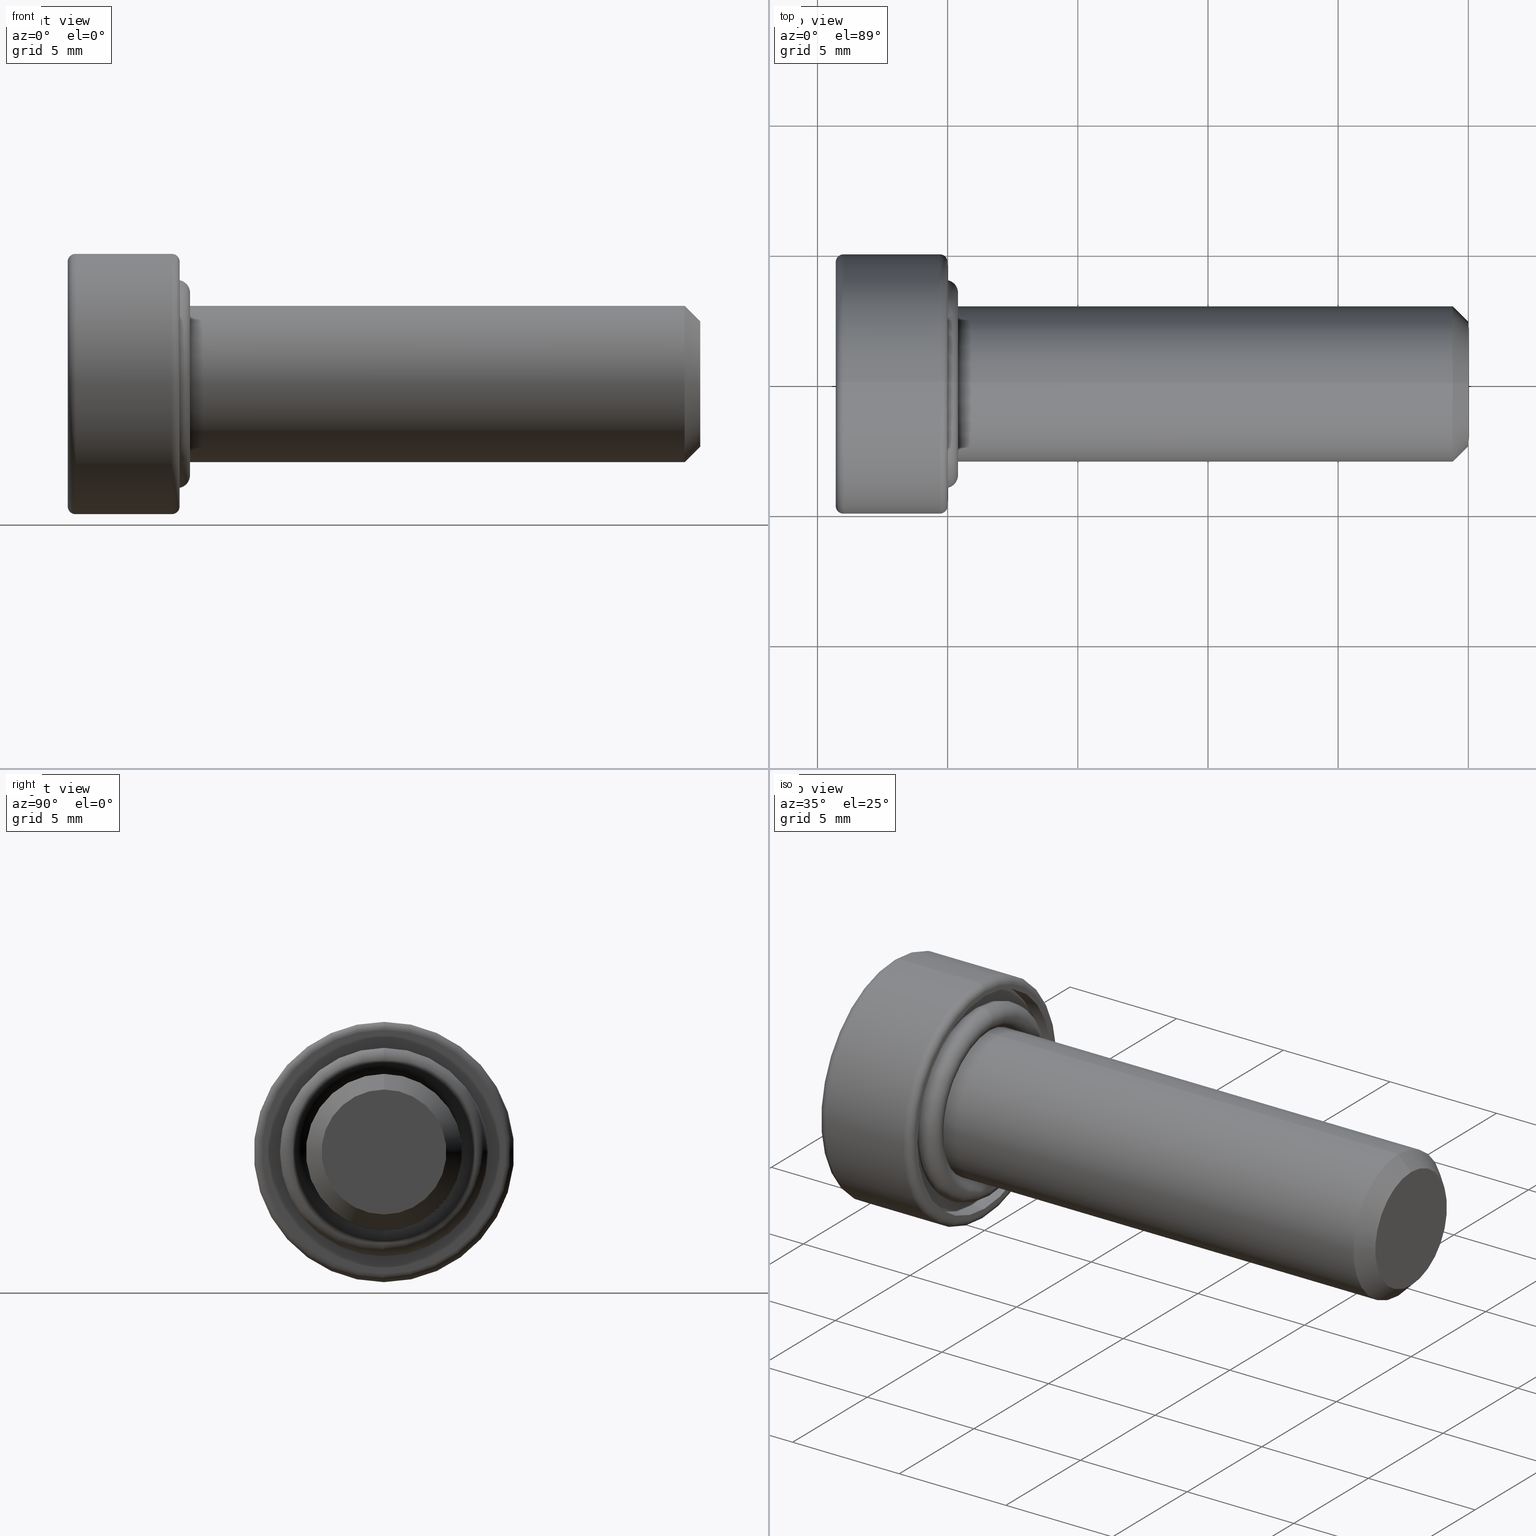
[diagram: canonical four-view strip — front | top / right | iso, engineering-drawing reading convention]
A machine part, canonical four-view strip (front | top / right | iso — engineering-drawing reading convention). The complete STEP part file that produces these views, byte-faithful:
ISO-10303-21;
HEADER;
FILE_DESCRIPTION (( 'STEP AP214' ),
    '1' );
FILE_NAME ('TL_418_M6_20.STEP',
    '2016-01-25T00:26:05',
    ( '' ),
    ( '' ),
    'SwSTEP 2.0',
    'SolidWorks 2015',
    '' );
FILE_SCHEMA (( 'AUTOMOTIVE_DESIGN' ));
ENDSEC;

DATA;
#1 = VERTEX_POINT ( 'NONE', #497 ) ;
#2 = VECTOR ( 'NONE', #228, 999.9999999999998900 ) ;
#3 = CYLINDRICAL_SURFACE ( 'NONE', #367, 3.000000000000000400 ) ;
#4 = CARTESIAN_POINT ( 'NONE',  ( -0.2999999999999999300, 0.0000000000000000000, -4.700000000000000200 ) ) ;
#5 =( GEOMETRIC_REPRESENTATION_CONTEXT ( 3 ) GLOBAL_UNCERTAINTY_ASSIGNED_CONTEXT ( ( #19 ) ) GLOBAL_UNIT_ASSIGNED_CONTEXT ( ( #498, #680, #748 ) ) REPRESENTATION_CONTEXT ( 'NONE', 'WORKASPACE' ) );
#6 = AXIS2_PLACEMENT_3D ( 'NONE', #700, #816, #308 ) ;
#7 = ORIENTED_EDGE ( 'NONE', *, *, #36, .F. ) ;
#8 = ORIENTED_EDGE ( 'NONE', *, *, #516, .F. ) ;
#9 = DIRECTION ( 'NONE',  ( 1.000000000000000000, -0.0000000000000000000, -0.0000000000000000000 ) ) ;
#10 = CIRCLE ( 'NONE', #530, 0.5000000000000004400 ) ;
#11 = PLANE ( 'NONE',  #648 ) ;
#12 = EDGE_CURVE ( 'NONE', #199, #616, #383, .T. ) ;
#13 = CIRCLE ( 'NONE', #451, 0.2999999999999999300 ) ;
#14 = EDGE_LOOP ( 'NONE', ( #479, #186, #262, #456 ) ) ;
#15 = DIRECTION ( 'NONE',  ( -1.000000000000000000, -0.0000000000000000000, -0.0000000000000000000 ) ) ;
#16 = ORIENTED_EDGE ( 'NONE', *, *, #466, .T. ) ;
#17 = FACE_OUTER_BOUND ( 'NONE', #751, .T. ) ;
#18 = FACE_OUTER_BOUND ( 'NONE', #46, .T. ) ;
#19 = UNCERTAINTY_MEASURE_WITH_UNIT (LENGTH_MEASURE( 1.000000000000000100E-005 ), #498, 'distance_accuracy_value', 'NONE');
#20 = PRESENTATION_LAYER_ASSIGNMENT (  '', '', ( #799 ) ) ;
#21 = EDGE_CURVE ( 'NONE', #603, #238, #558, .T. ) ;
#22 = SURFACE_STYLE_USAGE ( .BOTH. , #737 ) ;
#23 = ORIENTED_EDGE ( 'NONE', *, *, #460, .T. ) ;
#24 = ORIENTED_EDGE ( 'NONE', *, *, #12, .F. ) ;
#25 = APPLICATION_CONTEXT ( 'automotive_design' ) ;
#26 = FACE_OUTER_BOUND ( 'NONE', #773, .T. ) ;
#27 = EDGE_CURVE ( 'NONE', #117, #279, #39, .T. ) ;
#28 = FACE_BOUND ( 'NONE', #41, .T. ) ;
#29 = DIRECTION ( 'NONE',  ( 1.000000000000000000, 0.0000000000000000000, 0.0000000000000000000 ) ) ;
#30 = CIRCLE ( 'NONE', #366, 0.5000000000000004400 ) ;
#31 = STYLED_ITEM ( 'NONE', ( #92 ), #465 ) ;
#32 = CARTESIAN_POINT ( 'NONE',  ( -4.000000000000000000, 0.0000000000000000000, 0.0000000000000000000 ) ) ;
#33 = DIRECTION ( 'NONE',  ( 1.000000000000000000, 0.0000000000000000000, 0.0000000000000000000 ) ) ;
#34 = ORIENTED_EDGE ( 'NONE', *, *, #146, .F. ) ;
#35 = ORIENTED_EDGE ( 'NONE', *, *, #719, .F. ) ;
#36 = EDGE_CURVE ( 'NONE', #76, #172, #705, .T. ) ;
#37 = LINE ( 'NONE', #787, #536 ) ;
#38 = DIRECTION ( 'NONE',  ( 1.000000000000000000, 0.0000000000000000000, 0.0000000000000000000 ) ) ;
#39 = CIRCLE ( 'NONE', #144, 2.999999999999999600 ) ;
#40 = DIRECTION ( 'NONE',  ( 0.0000000000000000000, 0.0000000000000000000, -1.000000000000000000 ) ) ;
#41 = EDGE_LOOP ( 'NONE', ( #88, #759 ) ) ;
#42 =( NAMED_UNIT ( * ) PLANE_ANGLE_UNIT ( ) SI_UNIT ( $, .RADIAN. ) );
#43 = PLANE ( 'NONE',  #504 ) ;
#44 = ORIENTED_EDGE ( 'NONE', *, *, #12, .T. ) ;
#45 = AXIS2_PLACEMENT_3D ( 'NONE', #217, #416, #677 ) ;
#46 = EDGE_LOOP ( 'NONE', ( #753, #118 ) ) ;
#47 = AXIS2_PLACEMENT_3D ( 'NONE', #55, #396, #708 ) ;
#48 = VECTOR ( 'NONE', #564, 1000.000000000000000 ) ;
#49 = DIRECTION ( 'NONE',  ( 1.000000000000000000, 0.0000000000000000000, 0.0000000000000000000 ) ) ;
#50 = CONICAL_SURFACE ( 'NONE', #718, 2.399999999999995900, 0.7853981633974465000 ) ;
#51 = DIRECTION ( 'NONE',  ( 1.000000000000000000, 0.0000000000000000000, 0.0000000000000000000 ) ) ;
#52 = DIRECTION ( 'NONE',  ( -1.000000000000000000, -0.0000000000000000000, -0.0000000000000000000 ) ) ;
#53 = DIRECTION ( 'NONE',  ( 0.0000000000000000000, 0.0000000000000000000, 1.000000000000000000 ) ) ;
#54 = VERTEX_POINT ( 'NONE', #640 ) ;
#55 = CARTESIAN_POINT ( 'NONE',  ( -0.1000000000000000100, 0.0000000000000000000, 0.0000000000000000000 ) ) ;
#56 = DIRECTION ( 'NONE',  ( 0.0000000000000000000, 0.0000000000000000000, -1.000000000000000000 ) ) ;
#57 = MECHANICAL_DESIGN_GEOMETRIC_PRESENTATION_REPRESENTATION (  '', ( #799 ), #99 ) ;
#58 = ADVANCED_FACE ( 'NONE', ( #180 ), #176, .F. ) ;
#59 = EDGE_CURVE ( 'NONE', #754, #172, #685, .T. ) ;
#60 = DIRECTION ( 'NONE',  ( 0.0000000000000000000, 0.0000000000000000000, -1.000000000000000000 ) ) ;
#61 = VERTEX_POINT ( 'NONE', #526 ) ;
#62 = FACE_OUTER_BOUND ( 'NONE', #573, .T. ) ;
#63 = DIRECTION ( 'NONE',  ( 0.0000000000000000000, 0.8660254037844390400, -0.4999999999999995000 ) ) ;
#64 = ADVANCED_FACE ( 'NONE', ( #338 ), #3, .T. ) ;
#65 = CARTESIAN_POINT ( 'NONE',  ( 19.39999999999999500, 3.673940397442060400E-016, -3.000000000000000400 ) ) ;
#66 = DIRECTION ( 'NONE',  ( -1.000000000000000000, -0.0000000000000000000, -0.0000000000000000000 ) ) ;
#67 = DIRECTION ( 'NONE',  ( -1.000000000000000000, -0.0000000000000000000, -0.0000000000000000000 ) ) ;
#68 = VERTEX_POINT ( 'NONE', #647 ) ;
#69 = CARTESIAN_POINT ( 'NONE',  ( -4.000000000000000000, 6.123233995736765300E-016, 5.000000000000000000 ) ) ;
#70 = EDGE_LOOP ( 'NONE', ( #625, #555, #94, #178 ) ) ;
#71 = PRESENTATION_LAYER_ASSIGNMENT (  '', '', ( #31 ) ) ;
#72 = DIRECTION ( 'NONE',  ( -0.0000000000000000000, -0.5000000000000000000, 0.8660254037844386000 ) ) ;
#73 = EDGE_LOOP ( 'NONE', ( #771, #258, #808, #657 ) ) ;
#74 = CARTESIAN_POINT ( 'NONE',  ( 0.0000000000000000000, 0.0000000000000000000, 0.0000000000000000000 ) ) ;
#75 = DIRECTION ( 'NONE',  ( 0.0000000000000000000, 1.000000000000000000, -1.224646799147353200E-016 ) ) ;
#76 = VERTEX_POINT ( 'NONE', #168 ) ;
#77 = EDGE_CURVE ( 'NONE', #328, #393, #668, .T. ) ;
#78 = DIRECTION ( 'NONE',  ( 0.0000000000000000000, 0.0000000000000000000, -1.000000000000000000 ) ) ;
#79 = ORIENTED_EDGE ( 'NONE', *, *, #148, .T. ) ;
#80 = ADVANCED_FACE ( 'NONE', ( #523 ), #318, .T. ) ;
#81 = ORIENTED_EDGE ( 'NONE', *, *, #689, .F. ) ;
#82 = PRESENTATION_STYLE_ASSIGNMENT (( #158 ) ) ;
#83 = VECTOR ( 'NONE', #709, 1000.000000000000200 ) ;
#84 = APPLICATION_PROTOCOL_DEFINITION ( 'draft international standard', 'automotive_design', 1998, #25 ) ;
#85 = ADVANCED_FACE ( 'NONE', ( #18, #166 ), #43, .T. ) ;
#86 = CARTESIAN_POINT ( 'NONE',  ( -1.800000000000000000, 2.309401076758518900, 8.673617379884035500E-016 ) ) ;
#87 = STYLED_ITEM ( 'NONE', ( #226 ), #707 ) ;
#88 = ORIENTED_EDGE ( 'NONE', *, *, #580, .F. ) ;
#89 = AXIS2_PLACEMENT_3D ( 'NONE', #98, #9, #253 ) ;
#90 = CARTESIAN_POINT ( 'NONE',  ( -4.299999999999999800, -1.154700538379260100, 2.000000000000015100 ) ) ;
#91 = ORIENTED_EDGE ( 'NONE', *, *, #398, .F. ) ;
#92 = PRESENTATION_STYLE_ASSIGNMENT (( #397 ) ) ;
#93 = ORIENTED_EDGE ( 'NONE', *, *, #204, .T. ) ;
#94 = ORIENTED_EDGE ( 'NONE', *, *, #244, .T. ) ;
#95 = CARTESIAN_POINT ( 'NONE',  ( -1.800000000000000000, 1.154700538379259000, 2.000000000000013300 ) ) ;
#96 = ORIENTED_EDGE ( 'NONE', *, *, #244, .F. ) ;
#97 = DIRECTION ( 'NONE',  ( 1.000000000000000000, 0.0000000000000000000, 0.0000000000000000000 ) ) ;
#98 = CARTESIAN_POINT ( 'NONE',  ( -0.1000000000000000100, 0.0000000000000000000, 0.0000000000000000000 ) ) ;
#99 =( GEOMETRIC_REPRESENTATION_CONTEXT ( 3 ) GLOBAL_UNCERTAINTY_ASSIGNED_CONTEXT ( ( #164 ) ) GLOBAL_UNIT_ASSIGNED_CONTEXT ( ( #609, #593, #587 ) ) REPRESENTATION_CONTEXT ( 'NONE', 'WORKASPACE' ) );
#100 = ORIENTED_EDGE ( 'NONE', *, *, #177, .T. ) ;
#101 = VERTEX_POINT ( 'NONE', #502 ) ;
#102 = VERTEX_POINT ( 'NONE', #706 ) ;
#103 = AXIS2_PLACEMENT_3D ( 'NONE', #702, #435, #749 ) ;
#104 = COLOUR_RGB ( '',0.7921568627450980000, 0.8196078431372548800, 0.9333333333333333500 ) ;
#105 = DIRECTION ( 'NONE',  ( 0.0000000000000000000, 0.0000000000000000000, -1.000000000000000000 ) ) ;
#106 = VECTOR ( 'NONE', #387, 1000.000000000000000 ) ;
#107 = ADVANCED_FACE ( 'NONE', ( #500 ), #470, .F. ) ;
#108 = DIRECTION ( 'NONE',  ( 1.000000000000000000, 0.0000000000000000000, 0.0000000000000000000 ) ) ;
#109 = DIRECTION ( 'NONE',  ( 1.000000000000000000, 0.0000000000000000000, 0.0000000000000000000 ) ) ;
#110 = CARTESIAN_POINT ( 'NONE',  ( 20.00000000000000000, 3.673940397442060400E-016, -3.000000000000000400 ) ) ;
#111 = ADVANCED_FACE ( 'NONE', ( #143 ), #574, .F. ) ;
#112 = ORIENTED_EDGE ( 'NONE', *, *, #508, .F. ) ;
#113 = MECHANICAL_DESIGN_GEOMETRIC_PRESENTATION_REPRESENTATION (  '', ( #31 ), #153 ) ;
#114 = LINE ( 'NONE', #462, #179 ) ;
#115 = DIRECTION ( 'NONE',  ( -1.000000000000000000, -0.0000000000000000000, -0.0000000000000000000 ) ) ;
#116 = SHAPE_DEFINITION_REPRESENTATION ( #644, #739 ) ;
#117 = VERTEX_POINT ( 'NONE', #643 ) ;
#118 = ORIENTED_EDGE ( 'NONE', *, *, #202, .T. ) ;
#119 = EDGE_CURVE ( 'NONE', #171, #520, #804, .T. ) ;
#120 = ORIENTED_EDGE ( 'NONE', *, *, #119, .F. ) ;
#121 = ORIENTED_EDGE ( 'NONE', *, *, #427, .F. ) ;
#122 = DIRECTION ( 'NONE',  ( 1.000000000000000000, 0.0000000000000000000, 0.0000000000000000000 ) ) ;
#123 = VECTOR ( 'NONE', #218, 1000.000000000000000 ) ;
#124 = CIRCLE ( 'NONE', #711, 4.700000000000000200 ) ;
#125 = ITEM_DEFINED_TRANSFORMATION ( 'NONE', 'NONE', #395,  #45 ) ;
#126 = DIRECTION ( 'NONE',  ( 1.000000000000000000, 0.0000000000000000000, 0.0000000000000000000 ) ) ;
#127 = DIRECTION ( 'NONE',  ( -0.0000000000000000000, -0.4999999999999994400, -0.8660254037844389300 ) ) ;
#128 = PRESENTATION_LAYER_ASSIGNMENT (  '', '', ( #87 ) ) ;
#129 = AXIS2_PLACEMENT_3D ( 'NONE', #182, #532, #240 ) ;
#130 = CARTESIAN_POINT ( 'NONE',  ( -4.299999999999999800, 1.154700538379260600, -2.000000000000013800 ) ) ;
#131 = ORIENTED_EDGE ( 'NONE', *, *, #21, .T. ) ;
#132 = ORIENTED_EDGE ( 'NONE', *, *, #27, .T. ) ;
#133 = VECTOR ( 'NONE', #345, 1000.000000000000100 ) ;
#134 = CARTESIAN_POINT ( 'NONE',  ( -0.1000000000000000700, 3.673940397442059400E-016, 2.999999999999999600 ) ) ;
#135 = ORIENTED_EDGE ( 'NONE', *, *, #655, .T. ) ;
#136 =( LENGTH_UNIT ( ) NAMED_UNIT ( * ) SI_UNIT ( .MILLI., .METRE. ) );
#137 = FACE_OUTER_BOUND ( 'NONE', #732, .T. ) ;
#138 = DIRECTION ( 'NONE',  ( 1.000000000000000000, 0.0000000000000000000, 0.0000000000000000000 ) ) ;
#139 = DIRECTION ( 'NONE',  ( 0.0000000000000000000, 0.0000000000000000000, -1.000000000000000000 ) ) ;
#140 = ORIENTED_EDGE ( 'NONE', *, *, #516, .T. ) ;
#141 = ORIENTED_EDGE ( 'NONE', *, *, #331, .F. ) ;
#142 = LINE ( 'NONE', #795, #123 ) ;
#143 = FACE_OUTER_BOUND ( 'NONE', #463, .T. ) ;
#144 = AXIS2_PLACEMENT_3D ( 'NONE', #315, #441, #60 ) ;
#145 = DIRECTION ( 'NONE',  ( 1.000000000000000000, -0.0000000000000000000, -0.0000000000000000000 ) ) ;
#146 = EDGE_CURVE ( 'NONE', #169, #613, #293, .T. ) ;
#147 = VERTEX_POINT ( 'NONE', #534 ) ;
#148 = EDGE_CURVE ( 'NONE', #422, #754, #783, .T. ) ;
#149 = ORIENTED_EDGE ( 'NONE', *, *, #670, .F. ) ;
#150 =( NAMED_UNIT ( * ) SI_UNIT ( $, .STERADIAN. ) SOLID_ANGLE_UNIT ( ) );
#151 = CIRCLE ( 'NONE', #611, 5.000000000000000000 ) ;
#152 = VECTOR ( 'NONE', #805, 999.9999999999998900 ) ;
#153 =( GEOMETRIC_REPRESENTATION_CONTEXT ( 3 ) GLOBAL_UNCERTAINTY_ASSIGNED_CONTEXT ( ( #313 ) ) GLOBAL_UNIT_ASSIGNED_CONTEXT ( ( #136, #501, #150 ) ) REPRESENTATION_CONTEXT ( 'NONE', 'WORKASPACE' ) );
#154 = CARTESIAN_POINT ( 'NONE',  ( 19.39999999999999500, 0.0000000000000000000, 0.0000000000000000000 ) ) ;
#155 = DIRECTION ( 'NONE',  ( 0.0000000000000000000, 0.0000000000000000000, -1.000000000000000000 ) ) ;
#156 = PRODUCT_DEFINITION_SHAPE ( 'NONE', 'NONE',  #529 ) ;
#157 = EDGE_LOOP ( 'NONE', ( #335, #740 ) ) ;
#158 = SURFACE_STYLE_USAGE ( .BOTH. , #290 ) ;
#159 = EDGE_CURVE ( 'NONE', #520, #206, #124, .T. ) ;
#160 = EDGE_LOOP ( 'NONE', ( #581, #35, #132, #314 ) ) ;
#161 = CARTESIAN_POINT ( 'NONE',  ( -0.2999999999999999300, 5.755839955992559700E-016, 4.700000000000000200 ) ) ;
#162 = DIRECTION ( 'NONE',  ( 0.0000000000000000000, 0.0000000000000000000, -1.000000000000000000 ) ) ;
#163 = ORIENTED_EDGE ( 'NONE', *, *, #755, .F. ) ;
#164 = UNCERTAINTY_MEASURE_WITH_UNIT (LENGTH_MEASURE( 1.000000000000000100E-005 ), #609, 'distance_accuracy_value', 'NONE');
#165 = CIRCLE ( 'NONE', #519, 3.000000000000000400 ) ;
#166 = FACE_BOUND ( 'NONE', #346, .T. ) ;
#167 = CARTESIAN_POINT ( 'NONE',  ( -0.5999999999999999800, 0.0000000000000000000, 0.0000000000000000000 ) ) ;
#168 = CARTESIAN_POINT ( 'NONE',  ( -4.299999999999999800, 2.309401076758518900, 8.673617379884035500E-016 ) ) ;
#169 = VERTEX_POINT ( 'NONE', #455 ) ;
#170 = MECHANICAL_DESIGN_GEOMETRIC_PRESENTATION_REPRESENTATION (  '', ( #87 ), #213 ) ;
#171 = VERTEX_POINT ( 'NONE', #691 ) ;
#172 = VERTEX_POINT ( 'NONE', #130 ) ;
#173 = CARTESIAN_POINT ( 'NONE',  ( -1.800000000000000000, -1.154700538379260100, 2.000000000000015100 ) ) ;
#174 = FACE_OUTER_BOUND ( 'NONE', #370, .T. ) ;
#175 = LINE ( 'NONE', #110, #485 ) ;
#176 = PLANE ( 'NONE',  #273 ) ;
#177 = EDGE_CURVE ( 'NONE', #147, #54, #450, .T. ) ;
#178 = ORIENTED_EDGE ( 'NONE', *, *, #522, .T. ) ;
#179 = VECTOR ( 'NONE', #798, 1000.000000000000000 ) ;
#180 = FACE_OUTER_BOUND ( 'NONE', #195, .T. ) ;
#181 = CARTESIAN_POINT ( 'NONE',  ( -1.800000000000000000, 1.154700538379260600, -2.000000000000013800 ) ) ;
#182 = CARTESIAN_POINT ( 'NONE',  ( -0.1000000000000000100, 0.0000000000000000000, 0.0000000000000000000 ) ) ;
#183 = AXIS2_PLACEMENT_3D ( 'NONE', #154, #285, #223 ) ;
#184 = ORIENTED_EDGE ( 'NONE', *, *, #817, .T. ) ;
#185 = DIRECTION ( 'NONE',  ( 1.000000000000000000, 0.0000000000000000000, 0.0000000000000000000 ) ) ;
#186 = ORIENTED_EDGE ( 'NONE', *, *, #601, .F. ) ;
#187 = ORIENTED_EDGE ( 'NONE', *, *, #77, .T. ) ;
#188 = ORIENTED_EDGE ( 'NONE', *, *, #580, .T. ) ;
#189 = DIRECTION ( 'NONE',  ( 1.000000000000000000, 0.0000000000000000000, 0.0000000000000000000 ) ) ;
#190 = VERTEX_POINT ( 'NONE', #591 ) ;
#191 = FACE_OUTER_BOUND ( 'NONE', #14, .T. ) ;
#192 = TOROIDAL_SURFACE ( 'NONE', #254, 4.700000000000000200, 0.2999999999999999900 ) ;
#193 = CARTESIAN_POINT ( 'NONE',  ( -0.5999999999999999800, 0.0000000000000000000, 0.0000000000000000000 ) ) ;
#194 = CONICAL_SURFACE ( 'NONE', #271, 2.399999999999995900, 0.7853981633974465000 ) ;
#195 = EDGE_LOOP ( 'NONE', ( #761, #789, #442, #322 ) ) ;
#196 = AXIS2_PLACEMENT_3D ( 'NONE', #269, #75, #715 ) ;
#197 = ORIENTED_EDGE ( 'NONE', *, *, #548, .T. ) ;
#198 = SURFACE_SIDE_STYLE ('',( #260 ) ) ;
#199 = VERTEX_POINT ( 'NONE', #583 ) ;
#200 = AXIS2_PLACEMENT_3D ( 'NONE', #400, #598, #556 ) ;
#201 = CIRCLE ( 'NONE', #200, 4.700000000000000200 ) ;
#202 = EDGE_CURVE ( 'NONE', #206, #520, #539, .T. ) ;
#203 = VECTOR ( 'NONE', #266, 1000.000000000000100 ) ;
#204 = EDGE_CURVE ( 'NONE', #171, #637, #653, .T. ) ;
#205 = DIRECTION ( 'NONE',  ( 0.0000000000000000000, 0.0000000000000000000, -1.000000000000000000 ) ) ;
#206 = VERTEX_POINT ( 'NONE', #693 ) ;
#207 = DIRECTION ( 'NONE',  ( -1.000000000000000000, -0.0000000000000000000, -0.0000000000000000000 ) ) ;
#208 = DIRECTION ( 'NONE',  ( -0.0000000000000000000, -0.5000000000000000000, 0.8660254037844386000 ) ) ;
#209 = EDGE_CURVE ( 'NONE', #359, #190, #274, .T. ) ;
#210 = ORIENTED_EDGE ( 'NONE', *, *, #807, .T. ) ;
#211 = CARTESIAN_POINT ( 'NONE',  ( -4.299999999999999800, -1.154700538379260100, 2.000000000000015100 ) ) ;
#212 = LINE ( 'NONE', #566, #48 ) ;
#213 =( GEOMETRIC_REPRESENTATION_CONTEXT ( 3 ) GLOBAL_UNCERTAINTY_ASSIGNED_CONTEXT ( ( #562 ) ) GLOBAL_UNIT_ASSIGNED_CONTEXT ( ( #559, #310, #563 ) ) REPRESENTATION_CONTEXT ( 'NONE', 'WORKASPACE' ) );
#214 = AXIS2_PLACEMENT_3D ( 'NONE', #444, #236, #234 ) ;
#215 = CARTESIAN_POINT ( 'NONE',  ( 0.0000000000000000000, 0.0000000000000000000, 0.0000000000000000000 ) ) ;
#216 = FACE_BOUND ( 'NONE', #738, .T. ) ;
#217 = CARTESIAN_POINT ( 'NONE',  ( 0.0000000000000000000, 0.0000000000000000000, 0.0000000000000000000 ) ) ;
#218 = DIRECTION ( 'NONE',  ( -1.000000000000000000, -0.0000000000000000000, -0.0000000000000000000 ) ) ;
#219 = EDGE_CURVE ( 'NONE', #190, #359, #763, .T. ) ;
#220 = PLANE ( 'NONE',  #230 ) ;
#221 = CARTESIAN_POINT ( 'NONE',  ( -1.800000000000000000, -2.309401076758518000, 8.673617379884035500E-016 ) ) ;
#222 = ORIENTED_EDGE ( 'NONE', *, *, #209, .T. ) ;
#223 = DIRECTION ( 'NONE',  ( 0.0000000000000000000, 0.0000000000000000000, -1.000000000000000000 ) ) ;
#224 = EDGE_LOOP ( 'NONE', ( #811, #16, #475, #140, #390, #79 ) ) ;
#225 = CARTESIAN_POINT ( 'NONE',  ( -4.000000000000000000, 0.0000000000000000000, 0.0000000000000000000 ) ) ;
#226 = PRESENTATION_STYLE_ASSIGNMENT (( #22 ) ) ;
#227 = DIRECTION ( 'NONE',  ( 0.0000000000000000000, 1.000000000000000000, -3.755786496842873400E-016 ) ) ;
#228 = DIRECTION ( 'NONE',  ( -0.7071067811865489100, 0.0000000000000000000, 0.7071067811865462400 ) ) ;
#229 = DIRECTION ( 'NONE',  ( 1.000000000000000000, 0.0000000000000000000, 0.0000000000000000000 ) ) ;
#230 = AXIS2_PLACEMENT_3D ( 'NONE', #701, #684, #567 ) ;
#231 = AXIS2_PLACEMENT_3D ( 'NONE', #4, #296, #376 ) ;
#232 = FACE_OUTER_BOUND ( 'NONE', #538, .T. ) ;
#233 = APPLICATION_CONTEXT ( 'automotive_design' ) ;
#234 = DIRECTION ( 'NONE',  ( 0.0000000000000000000, 0.0000000000000000000, 1.000000000000000000 ) ) ;
#235 = CARTESIAN_POINT ( 'NONE',  ( 20.00000000000000000, 0.0000000000000000000, 0.0000000000000000000 ) ) ;
#236 = DIRECTION ( 'NONE',  ( -1.000000000000000000, -0.0000000000000000000, -0.0000000000000000000 ) ) ;
#237 = CARTESIAN_POINT ( 'NONE',  ( 0.0000000000000000000, 0.0000000000000000000, 0.0000000000000000000 ) ) ;
#238 = VERTEX_POINT ( 'NONE', #69 ) ;
#239 = DIRECTION ( 'NONE',  ( 0.0000000000000000000, 0.0000000000000000000, -1.000000000000000000 ) ) ;
#240 = DIRECTION ( 'NONE',  ( 0.0000000000000000000, 0.0000000000000000000, -1.000000000000000000 ) ) ;
#241 = ORIENTED_EDGE ( 'NONE', *, *, #466, .F. ) ;
#242 = EDGE_CURVE ( 'NONE', #102, #422, #251, .T. ) ;
#243 = AXIS2_PLACEMENT_3D ( 'NONE', #341, #672, #405 ) ;
#244 = EDGE_CURVE ( 'NONE', #328, #54, #606, .T. ) ;
#245 = CARTESIAN_POINT ( 'NONE',  ( -0.1000000000000000100, 0.0000000000000000000, -3.499999999999999600 ) ) ;
#246 = EDGE_CURVE ( 'NONE', #238, #637, #434, .T. ) ;
#247 = DIRECTION ( 'NONE',  ( -0.0000000000000000000, -0.4999999999999994400, -0.8660254037844389300 ) ) ;
#248 = VERTEX_POINT ( 'NONE', #632 ) ;
#249 = SURFACE_STYLE_FILL_AREA ( #776 ) ;
#250 = ADVANCED_FACE ( 'NONE', ( #62 ), #570, .T. ) ;
#251 = LINE ( 'NONE', #742, #83 ) ;
#252 = CARTESIAN_POINT ( 'NONE',  ( 0.0000000000000000000, 0.0000000000000000000, 0.0000000000000000000 ) ) ;
#253 = DIRECTION ( 'NONE',  ( 0.0000000000000000000, 0.0000000000000000000, -1.000000000000000000 ) ) ;
#254 = AXIS2_PLACEMENT_3D ( 'NONE', #582, #189, #696 ) ;
#255 = DIRECTION ( 'NONE',  ( 0.0000000000000000000, 0.0000000000000000000, -1.000000000000000000 ) ) ;
#256 = CARTESIAN_POINT ( 'NONE',  ( -1.800000000000000000, 1.154700538379260600, -2.000000000000013800 ) ) ;
#257 = DIRECTION ( 'NONE',  ( 1.000000000000000000, 0.0000000000000000000, 0.0000000000000000000 ) ) ;
#258 = ORIENTED_EDGE ( 'NONE', *, *, #204, .F. ) ;
#259 = ORIENTED_EDGE ( 'NONE', *, *, #219, .F. ) ;
#260 = SURFACE_STYLE_FILL_AREA ( #666 ) ;
#261 = CARTESIAN_POINT ( 'NONE',  ( -0.5999999999999999800, 5.510910596163088600E-016, 4.500000000000000000 ) ) ;
#262 = ORIENTED_EDGE ( 'NONE', *, *, #242, .F. ) ;
#263 = PRODUCT_DEFINITION_CONTEXT ( 'detailed design', #233, 'design' ) ;
#264 = ADVANCED_FACE ( 'NONE', ( #232 ), #725, .T. ) ;
#265 = DIRECTION ( 'NONE',  ( 0.0000000000000000000, 0.0000000000000000000, -1.000000000000000000 ) ) ;
#266 = DIRECTION ( 'NONE',  ( -0.0000000000000000000, 0.4999999999999993300, 0.8660254037844389300 ) ) ;
#267 = CARTESIAN_POINT ( 'NONE',  ( -0.1000000000000000100, 0.0000000000000000000, 0.0000000000000000000 ) ) ;
#268 = ORIENTED_EDGE ( 'NONE', *, *, #588, .F. ) ;
#269 = CARTESIAN_POINT ( 'NONE',  ( -0.1000000000000000100, 4.286263797015736100E-016, 3.499999999999999600 ) ) ;
#270 = EDGE_LOOP ( 'NONE', ( #411, #333, #34, #490 ) ) ;
#271 = AXIS2_PLACEMENT_3D ( 'NONE', #235, #377, #699 ) ;
#272 = VECTOR ( 'NONE', #67, 1000.000000000000000 ) ;
#273 = AXIS2_PLACEMENT_3D ( 'NONE', #256, #63, #394 ) ;
#274 = CIRCLE ( 'NONE', #47, 4.000000000000000000 ) ;
#275 =( LENGTH_UNIT ( ) NAMED_UNIT ( * ) SI_UNIT ( .MILLI., .METRE. ) );
#276 = ORIENTED_EDGE ( 'NONE', *, *, #599, .T. ) ;
#277 = CARTESIAN_POINT ( 'NONE',  ( 20.00000000000000000, 0.0000000000000000000, 0.0000000000000000000 ) ) ;
#278 = DIRECTION ( 'NONE',  ( 0.0000000000000000000, 0.0000000000000000000, -1.000000000000000000 ) ) ;
#279 = VERTEX_POINT ( 'NONE', #134 ) ;
#280 = DIRECTION ( 'NONE',  ( 1.000000000000000000, 0.0000000000000000000, 0.0000000000000000000 ) ) ;
#281 = CIRCLE ( 'NONE', #772, 4.500000000000000000 ) ;
#282 = PLANE ( 'NONE',  #633 ) ;
#283 = COLOUR_RGB ( '',0.7921568627450980000, 0.8196078431372548800, 0.9333333333333333500 ) ;
#284 = CARTESIAN_POINT ( 'NONE',  ( -0.5999999999999999800, 0.0000000000000000000, 0.0000000000000000000 ) ) ;
#285 = DIRECTION ( 'NONE',  ( -1.000000000000000000, 0.0000000000000000000, 0.0000000000000000000 ) ) ;
#286 = CARTESIAN_POINT ( 'NONE',  ( -4.299999999999999800, -2.309401076758518000, 8.673617379884035500E-016 ) ) ;
#287 = AXIS2_PLACEMENT_3D ( 'NONE', #727, #537, #78 ) ;
#288 = EDGE_CURVE ( 'NONE', #393, #147, #212, .T. ) ;
#289 = DIRECTION ( 'NONE',  ( 0.0000000000000000000, 0.0000000000000000000, 1.000000000000000000 ) ) ;
#290 = SURFACE_SIDE_STYLE ('',( #249 ) ) ;
#291 = FACE_OUTER_BOUND ( 'NONE', #73, .T. ) ;
#292 = DIRECTION ( 'NONE',  ( 0.0000000000000000000, 0.0000000000000000000, -1.000000000000000000 ) ) ;
#293 = CIRCLE ( 'NONE', #674, 3.000000000000000400 ) ;
#294 = SHAPE_DEFINITION_REPRESENTATION ( #156, #575 ) ;
#295 = DIRECTION ( 'NONE',  ( 0.0000000000000000000, 1.000000000000000000, -1.224646799147353200E-016 ) ) ;
#296 = DIRECTION ( 'NONE',  ( 0.0000000000000000000, -1.000000000000000000, 0.0000000000000000000 ) ) ;
#297 = CARTESIAN_POINT ( 'NONE',  ( -0.2999999999999999300, 0.0000000000000000000, 0.0000000000000000000 ) ) ;
#298 = CARTESIAN_POINT ( 'NONE',  ( 20.00000000000000000, 0.0000000000000000000, 2.399999999999995900 ) ) ;
#299 = ORIENTED_EDGE ( 'NONE', *, *, #508, .T. ) ;
#300 = ORIENTED_EDGE ( 'NONE', *, *, #649, .F. ) ;
#301 = AXIS2_PLACEMENT_3D ( 'NONE', #245, #812, #56 ) ;
#302 = ORIENTED_EDGE ( 'NONE', *, *, #446, .F. ) ;
#303 = DIRECTION ( 'NONE',  ( 0.0000000000000000000, 0.0000000000000000000, -1.000000000000000000 ) ) ;
#304 = ORIENTED_EDGE ( 'NONE', *, *, #719, .T. ) ;
#305 = ORIENTED_EDGE ( 'NONE', *, *, #586, .T. ) ;
#306 = FACE_OUTER_BOUND ( 'NONE', #596, .T. ) ;
#307 = DIRECTION ( 'NONE',  ( 0.0000000000000000000, 0.0000000000000000000, 1.000000000000000000 ) ) ;
#308 = DIRECTION ( 'NONE',  ( 0.0000000000000000000, 0.0000000000000000000, -1.000000000000000000 ) ) ;
#309 = TOROIDAL_SURFACE ( 'NONE', #673, 4.700000000000000200, 0.2999999999999999900 ) ;
#310 =( NAMED_UNIT ( * ) PLANE_ANGLE_UNIT ( ) SI_UNIT ( $, .RADIAN. ) );
#311 = VERTEX_POINT ( 'NONE', #298 ) ;
#312 = DIRECTION ( 'NONE',  ( -1.000000000000000000, 0.0000000000000000000, 0.0000000000000000000 ) ) ;
#313 = UNCERTAINTY_MEASURE_WITH_UNIT (LENGTH_MEASURE( 1.000000000000000100E-005 ), #136, 'distance_accuracy_value', 'NONE');
#314 = ORIENTED_EDGE ( 'NONE', *, *, #386, .T. ) ;
#315 = CARTESIAN_POINT ( 'NONE',  ( -0.1000000000000000700, 0.0000000000000000000, 0.0000000000000000000 ) ) ;
#316 = VERTEX_POINT ( 'NONE', #760 ) ;
#317 = CIRCLE ( 'NONE', #464, 5.000000000000000000 ) ;
#318 = CYLINDRICAL_SURFACE ( 'NONE', #453, 5.000000000000000000 ) ;
#319 = CARTESIAN_POINT ( 'NONE',  ( 19.39999999999999500, 0.0000000000000000000, 0.0000000000000000000 ) ) ;
#320 = AXIS2_PLACEMENT_3D ( 'NONE', #784, #280, #750 ) ;
#321 = AXIS2_PLACEMENT_3D ( 'NONE', #524, #122, #303 ) ;
#322 = ORIENTED_EDGE ( 'NONE', *, *, #601, .T. ) ;
#323 = DIRECTION ( 'NONE',  ( -0.0000000000000000000, 0.5000000000000003300, -0.8660254037844383700 ) ) ;
#324 = CYLINDRICAL_SURFACE ( 'NONE', #571, 5.000000000000000000 ) ;
#325 = CARTESIAN_POINT ( 'NONE',  ( -1.800000000000000000, 1.154700538379260600, -2.000000000000013800 ) ) ;
#326 = DIRECTION ( 'NONE',  ( 0.0000000000000000000, 0.0000000000000000000, -1.000000000000000000 ) ) ;
#327 = LINE ( 'NONE', #621, #512 ) ;
#328 = VERTEX_POINT ( 'NONE', #578 ) ;
#329 = DIRECTION ( 'NONE',  ( -1.000000000000000000, -0.0000000000000000000, -0.0000000000000000000 ) ) ;
#330 = ORIENTED_EDGE ( 'NONE', *, *, #515, .F. ) ;
#331 = EDGE_CURVE ( 'NONE', #1, #171, #585, .T. ) ;
#332 = AXIS2_PLACEMENT_3D ( 'NONE', #778, #675, #139 ) ;
#333 = ORIENTED_EDGE ( 'NONE', *, *, #755, .T. ) ;
#334 = EDGE_CURVE ( 'NONE', #818, #616, #712, .T. ) ;
#335 = ORIENTED_EDGE ( 'NONE', *, *, #560, .T. ) ;
#336 = LINE ( 'NONE', #492, #2 ) ;
#337 = CARTESIAN_POINT ( 'NONE',  ( -1.800000000000000000, -1.154700538379260100, 2.000000000000015100 ) ) ;
#338 = FACE_OUTER_BOUND ( 'NONE', #639, .T. ) ;
#339 = CARTESIAN_POINT ( 'NONE',  ( -0.1000000000000000100, 0.0000000000000000000, 0.0000000000000000000 ) ) ;
#340 = DIRECTION ( 'NONE',  ( -0.0000000000000000000, -1.000000000000000000, -0.0000000000000000000 ) ) ;
#341 = CARTESIAN_POINT ( 'NONE',  ( -0.1000000000000000700, 0.0000000000000000000, 0.0000000000000000000 ) ) ;
#342 = ADVANCED_FACE ( 'NONE', ( #372 ), #192, .T. ) ;
#343 = ADVANCED_FACE ( 'NONE', ( #527 ), #514, .F. ) ;
#344 = ORIENTED_EDGE ( 'NONE', *, *, #758, .F. ) ;
#345 = DIRECTION ( 'NONE',  ( -0.0000000000000000000, 0.4999999999999993300, 0.8660254037844389300 ) ) ;
#346 = EDGE_LOOP ( 'NONE', ( #767, #781 ) ) ;
#347 = AXIS2_PLACEMENT_3D ( 'NONE', #215, #796, #365 ) ;
#348 = AXIS2_PLACEMENT_3D ( 'NONE', #747, #654, #579 ) ;
#349 = FACE_OUTER_BOUND ( 'NONE', #535, .T. ) ;
#350 = APPLICATION_CONTEXT ( 'automotive_design' ) ;
#351 = LINE ( 'NONE', #788, #152 ) ;
#352 = FILL_AREA_STYLE_COLOUR ( '', #283 ) ;
#353 = DIRECTION ( 'NONE',  ( 0.0000000000000000000, 0.0000000000000000000, -1.000000000000000000 ) ) ;
#354 = EDGE_CURVE ( 'NONE', #359, #117, #743, .T. ) ;
#355 = ADVANCED_FACE ( 'NONE', ( #28, #174 ), #568, .T. ) ;
#356 = APPLICATION_PROTOCOL_DEFINITION ( 'draft international standard', 'automotive_design', 1998, #350 ) ;
#357 = DIRECTION ( 'NONE',  ( 1.000000000000000000, -0.0000000000000000000, -0.0000000000000000000 ) ) ;
#358 = FILL_AREA_STYLE ('',( #352 ) ) ;
#359 = VERTEX_POINT ( 'NONE', #810 ) ;
#360 = DIRECTION ( 'NONE',  ( 0.0000000000000000000, 0.0000000000000000000, -1.000000000000000000 ) ) ;
#361 = CIRCLE ( 'NONE', #243, 2.999999999999999600 ) ;
#362 = VECTOR ( 'NONE', #127, 1000.000000000000200 ) ;
#363 = DIRECTION ( 'NONE',  ( -0.0000000000000000000, 1.000000000000000000, -7.511572993685745900E-016 ) ) ;
#364 = DIRECTION ( 'NONE',  ( 1.000000000000000000, 0.0000000000000000000, 0.0000000000000000000 ) ) ;
#365 = DIRECTION ( 'NONE',  ( 1.000000000000000000, 0.0000000000000000000, 0.0000000000000000000 ) ) ;
#366 = AXIS2_PLACEMENT_3D ( 'NONE', #432, #340, #482 ) ;
#367 = AXIS2_PLACEMENT_3D ( 'NONE', #806, #66, #53 ) ;
#368 = DIRECTION ( 'NONE',  ( 1.000000000000000000, 0.0000000000000000000, 0.0000000000000000000 ) ) ;
#369 = ORIENTED_EDGE ( 'NONE', *, *, #246, .T. ) ;
#370 = EDGE_LOOP ( 'NONE', ( #187, #23 ) ) ;
#371 = FACE_OUTER_BOUND ( 'NONE', #270, .T. ) ;
#372 = FACE_OUTER_BOUND ( 'NONE', #595, .T. ) ;
#373 = LINE ( 'NONE', #572, #698 ) ;
#374 = ADVANCED_FACE ( 'NONE', ( #349 ), #324, .T. ) ;
#375 =( NAMED_UNIT ( * ) SI_UNIT ( $, .STERADIAN. ) SOLID_ANGLE_UNIT ( ) );
#376 = DIRECTION ( 'NONE',  ( 0.0000000000000000000, 0.0000000000000000000, -1.000000000000000000 ) ) ;
#377 = DIRECTION ( 'NONE',  ( -1.000000000000000000, 0.0000000000000000000, 0.0000000000000000000 ) ) ;
#378 = ORIENTED_EDGE ( 'NONE', *, *, #599, .F. ) ;
#379 = DIRECTION ( 'NONE',  ( -1.000000000000000000, -0.0000000000000000000, -0.0000000000000000000 ) ) ;
#380 = PRODUCT_DEFINITION_CONTEXT ( 'detailed design', #552, 'design' ) ;
#381 = ADVANCED_FACE ( 'NONE', ( #694 ), #676, .T. ) ;
#382 = VECTOR ( 'NONE', #208, 1000.000000000000200 ) ;
#383 = LINE ( 'NONE', #90, #203 ) ;
#384 = DIRECTION ( 'NONE',  ( 1.000000000000000000, 0.0000000000000000000, 0.0000000000000000000 ) ) ;
#385 = AXIS2_PLACEMENT_3D ( 'NONE', #768, #474, #486 ) ;
#386 = EDGE_CURVE ( 'NONE', #279, #190, #10, .T. ) ;
#387 = DIRECTION ( 'NONE',  ( 1.000000000000000000, -0.0000000000000000000, -0.0000000000000000000 ) ) ;
#388 = CARTESIAN_POINT ( 'NONE',  ( -4.299999999999999800, 6.123233995736765300E-016, 5.000000000000000000 ) ) ;
#389 = ORIENTED_EDGE ( 'NONE', *, *, #561, .T. ) ;
#390 = ORIENTED_EDGE ( 'NONE', *, *, #242, .T. ) ;
#391 = ORIENTED_EDGE ( 'NONE', *, *, #219, .T. ) ;
#392 = VECTOR ( 'NONE', #52, 1000.000000000000000 ) ;
#393 = VERTEX_POINT ( 'NONE', #261 ) ;
#394 = DIRECTION ( 'NONE',  ( 0.0000000000000000000, 0.4999999999999994400, 0.8660254037844389300 ) ) ;
#395 = AXIS2_PLACEMENT_3D ( 'NONE', #792, #307, #51 ) ;
#396 = DIRECTION ( 'NONE',  ( 1.000000000000000000, -0.0000000000000000000, -0.0000000000000000000 ) ) ;
#397 = SURFACE_STYLE_USAGE ( .BOTH. , #198 ) ;
#398 = EDGE_CURVE ( 'NONE', #752, #199, #662, .T. ) ;
#399 = ORIENTED_EDGE ( 'NONE', *, *, #561, .F. ) ;
#400 = CARTESIAN_POINT ( 'NONE',  ( -4.299999999999999800, 0.0000000000000000000, 0.0000000000000000000 ) ) ;
#401 = EDGE_LOOP ( 'NONE', ( #210, #369, #723, #141 ) ) ;
#402 = ORIENTED_EDGE ( 'NONE', *, *, #807, .F. ) ;
#403 = ORIENTED_EDGE ( 'NONE', *, *, #802, .F. ) ;
#404 = VERTEX_POINT ( 'NONE', #221 ) ;
#405 = DIRECTION ( 'NONE',  ( 0.0000000000000000000, 0.0000000000000000000, -1.000000000000000000 ) ) ;
#406 = SURFACE_STYLE_FILL_AREA ( #358 ) ;
#407 = UNCERTAINTY_MEASURE_WITH_UNIT (LENGTH_MEASURE( 1.000000000000000100E-005 ), #275, 'distance_accuracy_value', 'NONE');
#408 = EDGE_LOOP ( 'NONE', ( #480, #391, #468, #612 ) ) ;
#409 = CARTESIAN_POINT ( 'NONE',  ( -1.800000000000000000, -1.154700538379260100, 2.000000000000015100 ) ) ;
#410 = DIRECTION ( 'NONE',  ( 1.000000000000000000, 0.0000000000000000000, 0.0000000000000000000 ) ) ;
#411 = ORIENTED_EDGE ( 'NONE', *, *, #431, .F. ) ;
#412 = ORIENTED_EDGE ( 'NONE', *, *, #386, .F. ) ;
#413 = DIRECTION ( 'NONE',  ( 0.0000000000000000000, 1.224646799147353200E-016, 1.000000000000000000 ) ) ;
#414 = DIRECTION ( 'NONE',  ( 0.0000000000000000000, 1.224646799147352500E-016, 1.000000000000000000 ) ) ;
#415 = VECTOR ( 'NONE', #384, 1000.000000000000000 ) ;
#416 = DIRECTION ( 'NONE',  ( 0.0000000000000000000, 0.0000000000000000000, 1.000000000000000000 ) ) ;
#417 = DIRECTION ( 'NONE',  ( 0.0000000000000000000, -0.8660254037844387100, -0.5000000000000001100 ) ) ;
#418 = CARTESIAN_POINT ( 'NONE',  ( -0.5999999999999999800, 0.0000000000000000000, 3.000000000000000400 ) ) ;
#419 = ORIENTED_EDGE ( 'NONE', *, *, #59, .T. ) ;
#420 = CARTESIAN_POINT ( 'NONE',  ( -0.5999999999999999800, 0.0000000000000000000, 0.0000000000000000000 ) ) ;
#421 = DIRECTION ( 'NONE',  ( 0.0000000000000000000, 0.0000000000000000000, -1.000000000000000000 ) ) ;
#422 = VERTEX_POINT ( 'NONE', #679 ) ;
#423 = ORIENTED_EDGE ( 'NONE', *, *, #331, .T. ) ;
#424 = CARTESIAN_POINT ( 'NONE',  ( -1.800000000000000000, -1.154700538379258300, -2.000000000000012900 ) ) ;
#425 = DIRECTION ( 'NONE',  ( 0.0000000000000000000, 0.0000000000000000000, -1.000000000000000000 ) ) ;
#426 = DIRECTION ( 'NONE',  ( -1.000000000000000000, -0.0000000000000000000, -0.0000000000000000000 ) ) ;
#427 = EDGE_CURVE ( 'NONE', #404, #818, #813, .T. ) ;
#428 = AXIS2_PLACEMENT_3D ( 'NONE', #477, #717, #278 ) ;
#429 = EDGE_CURVE ( 'NONE', #637, #171, #151, .T. ) ;
#430 = DIRECTION ( 'NONE',  ( -0.0000000000000000000, -1.000000000000000000, 3.755786496842872900E-016 ) ) ;
#431 = EDGE_CURVE ( 'NONE', #248, #311, #790, .T. ) ;
#432 = CARTESIAN_POINT ( 'NONE',  ( -0.1000000000000000100, 0.0000000000000000000, -3.499999999999999600 ) ) ;
#433 = CYLINDRICAL_SURFACE ( 'NONE', #757, 4.500000000000000000 ) ;
#434 = LINE ( 'NONE', #388, #415 ) ;
#435 = DIRECTION ( 'NONE',  ( 0.0000000000000000000, 1.000000000000000000, -1.224646799147353200E-016 ) ) ;
#436 = ORIENTED_EDGE ( 'NONE', *, *, #764, .F. ) ;
#437 = ORIENTED_EDGE ( 'NONE', *, *, #487, .T. ) ;
#438 =( GEOMETRIC_REPRESENTATION_CONTEXT ( 3 ) GLOBAL_UNCERTAINTY_ASSIGNED_CONTEXT ( ( #407 ) ) GLOBAL_UNIT_ASSIGNED_CONTEXT ( ( #275, #42, #375 ) ) REPRESENTATION_CONTEXT ( 'NONE', 'WORKASPACE' ) );
#439 = ADVANCED_FACE ( 'NONE', ( #641 ), #509, .T. ) ;
#440 = AXIS2_PLACEMENT_3D ( 'NONE', #339, #357, #155 ) ;
#441 = DIRECTION ( 'NONE',  ( 1.000000000000000000, -0.0000000000000000000, -0.0000000000000000000 ) ) ;
#442 = ORIENTED_EDGE ( 'NONE', *, *, #148, .F. ) ;
#443 = CIRCLE ( 'NONE', #196, 0.5000000000000004400 ) ;
#444 = CARTESIAN_POINT ( 'NONE',  ( 20.00000000000000000, 0.0000000000000000000, 0.0000000000000000000 ) ) ;
#445 = ADVANCED_FACE ( 'NONE', ( #306 ), #489, .F. ) ;
#446 = EDGE_CURVE ( 'NONE', #316, #752, #774, .T. ) ;
#447 = CARTESIAN_POINT ( 'NONE',  ( 0.0000000000000000000, 0.0000000000000000000, 0.0000000000000000000 ) ) ;
#448 = ORIENTED_EDGE ( 'NONE', *, *, #21, .F. ) ;
#449 = LINE ( 'NONE', #86, #272 ) ;
#450 = CIRCLE ( 'NONE', #745, 4.500000000000000000 ) ;
#451 = AXIS2_PLACEMENT_3D ( 'NONE', #473, #565, #695 ) ;
#452 = CONTEXT_DEPENDENT_SHAPE_REPRESENTATION ( #746, #734 ) ;
#453 = AXIS2_PLACEMENT_3D ( 'NONE', #769, #109, #756 ) ;
#454 = ORIENTED_EDGE ( 'NONE', *, *, #460, .F. ) ;
#455 = CARTESIAN_POINT ( 'NONE',  ( 19.39999999999999500, 0.0000000000000000000, 3.000000000000000400 ) ) ;
#456 = ORIENTED_EDGE ( 'NONE', *, *, #588, .T. ) ;
#457 = ORIENTED_EDGE ( 'NONE', *, *, #429, .F. ) ;
#458 = VECTOR ( 'NONE', #15, 1000.000000000000000 ) ;
#459 = CARTESIAN_POINT ( 'NONE',  ( -0.2999999999999999300, 0.0000000000000000000, 0.0000000000000000000 ) ) ;
#460 = EDGE_CURVE ( 'NONE', #393, #328, #281, .T. ) ;
#461 = CIRCLE ( 'NONE', #710, 5.000000000000000000 ) ;
#462 = CARTESIAN_POINT ( 'NONE',  ( -1.800000000000000000, 1.154700538379259000, 2.000000000000013300 ) ) ;
#463 = EDGE_LOOP ( 'NONE', ( #44, #669, #121, #797 ) ) ;
#464 = AXIS2_PLACEMENT_3D ( 'NONE', #225, #364, #205 ) ;
#465 = MANIFOLD_SOLID_BREP ( '��]1', #628 ) ;
#466 = EDGE_CURVE ( 'NONE', #316, #404, #557, .T. ) ;
#467 = CARTESIAN_POINT ( 'NONE',  ( 20.00000000000000000, 0.0000000000000000000, 3.000000000000000400 ) ) ;
#468 = ORIENTED_EDGE ( 'NONE', *, *, #354, .T. ) ;
#469 = VECTOR ( 'NONE', #426, 1000.000000000000000 ) ;
#470 = CYLINDRICAL_SURFACE ( 'NONE', #584, 4.500000000000000000 ) ;
#471 = DIRECTION ( 'NONE',  ( -1.000000000000000000, 0.0000000000000000000, 0.0000000000000000000 ) ) ;
#472 = CARTESIAN_POINT ( 'NONE',  ( -1.800000000000000000, -2.309401076758518000, 8.673617379884035500E-016 ) ) ;
#473 = CARTESIAN_POINT ( 'NONE',  ( -4.000000000000000000, 0.0000000000000000000, -4.700000000000000200 ) ) ;
#474 = DIRECTION ( 'NONE',  ( 1.000000000000000000, -0.0000000000000000000, -0.0000000000000000000 ) ) ;
#475 = ORIENTED_EDGE ( 'NONE', *, *, #427, .T. ) ;
#476 = PRODUCT ( 'screw', 'screw', '', ( #488 ) ) ;
#477 = CARTESIAN_POINT ( 'NONE',  ( -4.000000000000000000, 0.0000000000000000000, 0.0000000000000000000 ) ) ;
#478 = AXIS2_PLACEMENT_3D ( 'NONE', #809, #671, #97 ) ;
#479 = ORIENTED_EDGE ( 'NONE', *, *, #515, .T. ) ;
#480 = ORIENTED_EDGE ( 'NONE', *, *, #487, .F. ) ;
#481 = AXIS2_PLACEMENT_3D ( 'NONE', #528, #185, #507 ) ;
#482 = DIRECTION ( 'NONE',  ( 0.0000000000000000000, 0.0000000000000000000, -1.000000000000000000 ) ) ;
#483 = VECTOR ( 'NONE', #72, 1000.000000000000200 ) ;
#484 = DIRECTION ( 'NONE',  ( -0.0000000000000000000, -1.000000000000000000, 3.755786496842872900E-016 ) ) ;
#485 = VECTOR ( 'NONE', #207, 1000.000000000000000 ) ;
#486 = DIRECTION ( 'NONE',  ( 0.0000000000000000000, 0.0000000000000000000, -1.000000000000000000 ) ) ;
#487 = EDGE_CURVE ( 'NONE', #190, #279, #443, .T. ) ;
#488 = PRODUCT_CONTEXT ( 'NONE', #25, 'mechanical' ) ;
#489 = PLANE ( 'NONE',  #814 ) ;
#490 = ORIENTED_EDGE ( 'NONE', *, *, #548, .F. ) ;
#491 = CARTESIAN_POINT ( 'NONE',  ( -1.800000000000000000, 1.154700538379260600, -2.000000000000013800 ) ) ;
#492 = CARTESIAN_POINT ( 'NONE',  ( 20.00000000000000000, 0.0000000000000000000, 2.399999999999995900 ) ) ;
#493 = ORIENTED_EDGE ( 'NONE', *, *, #354, .F. ) ;
#494 = ORIENTED_EDGE ( 'NONE', *, *, #689, .T. ) ;
#495 = EDGE_LOOP ( 'NONE', ( #493, #222, #437, #779 ) ) ;
#496 = CIRCLE ( 'NONE', #332, 2.399999999999995900 ) ;
#497 = CARTESIAN_POINT ( 'NONE',  ( -4.000000000000000000, 0.0000000000000000000, -5.000000000000000000 ) ) ;
#498 =( LENGTH_UNIT ( ) NAMED_UNIT ( * ) SI_UNIT ( .MILLI., .METRE. ) );
#499 = EDGE_LOOP ( 'NONE', ( #659, #302, #149, #419 ) ) ;
#500 = FACE_OUTER_BOUND ( 'NONE', #70, .T. ) ;
#501 =( NAMED_UNIT ( * ) PLANE_ANGLE_UNIT ( ) SI_UNIT ( $, .RADIAN. ) );
#502 = CARTESIAN_POINT ( 'NONE',  ( -4.299999999999999800, 0.0000000000000000000, -4.700000000000000200 ) ) ;
#503 = AXIS2_PLACEMENT_3D ( 'NONE', #624, #368, #513 ) ;
#504 = AXIS2_PLACEMENT_3D ( 'NONE', #252, #589, #765 ) ;
#505 = DIRECTION ( 'NONE',  ( 0.0000000000000000000, -0.4999999999999993300, -0.8660254037844389300 ) ) ;
#506 = PLANE ( 'NONE',  #744 ) ;
#507 = DIRECTION ( 'NONE',  ( 0.0000000000000000000, 0.0000000000000000000, -1.000000000000000000 ) ) ;
#508 = EDGE_CURVE ( 'NONE', #101, #603, #201, .T. ) ;
#509 = TOROIDAL_SURFACE ( 'NONE', #730, 3.499999999999999600, 0.5000000000000001100 ) ;
#510 = DIRECTION ( 'NONE',  ( 0.0000000000000000000, -3.755786496842873400E-016, -1.000000000000000000 ) ) ;
#511 = CARTESIAN_POINT ( 'NONE',  ( -1.800000000000000000, -1.154700538379260100, 2.000000000000015100 ) ) ;
#512 = VECTOR ( 'NONE', #484, 1000.000000000000000 ) ;
#513 = DIRECTION ( 'NONE',  ( 0.0000000000000000000, 0.0000000000000000000, -1.000000000000000000 ) ) ;
#514 = PLANE ( 'NONE',  #348 ) ;
#515 = EDGE_CURVE ( 'NONE', #68, #76, #37, .T. ) ;
#516 = EDGE_CURVE ( 'NONE', #818, #102, #114, .T. ) ;
#517 = DIRECTION ( 'NONE',  ( 0.0000000000000000000, -0.8660254037844390400, 0.4999999999999993900 ) ) ;
#518 = EDGE_CURVE ( 'NONE', #279, #117, #361, .T. ) ;
#519 = AXIS2_PLACEMENT_3D ( 'NONE', #420, #257, #360 ) ;
#520 = VERTEX_POINT ( 'NONE', #714 ) ;
#521 = TOROIDAL_SURFACE ( 'NONE', #385, 3.499999999999999600, 0.5000000000000001100 ) ;
#522 = EDGE_CURVE ( 'NONE', #54, #147, #704, .T. ) ;
#523 = FACE_OUTER_BOUND ( 'NONE', #401, .T. ) ;
#524 = CARTESIAN_POINT ( 'NONE',  ( -0.5999999999999999800, 0.0000000000000000000, 0.0000000000000000000 ) ) ;
#525 = EDGE_LOOP ( 'NONE', ( #454, #577, #100, #96 ) ) ;
#526 = CARTESIAN_POINT ( 'NONE',  ( -0.5999999999999999800, 3.673940397442060400E-016, -3.000000000000000400 ) ) ;
#527 = FACE_OUTER_BOUND ( 'NONE', #224, .T. ) ;
#528 = CARTESIAN_POINT ( 'NONE',  ( -0.5999999999999999800, 0.0000000000000000000, 0.0000000000000000000 ) ) ;
#529 = PRODUCT_DEFINITION ( 'UNKNOWN', '', #729, #380 ) ;
#530 = AXIS2_PLACEMENT_3D ( 'NONE', #614, #607, #414 ) ;
#531 = FACE_OUTER_BOUND ( 'NONE', #735, .T. ) ;
#532 = DIRECTION ( 'NONE',  ( 1.000000000000000000, -0.0000000000000000000, -0.0000000000000000000 ) ) ;
#533 = DIRECTION ( 'NONE',  ( -1.000000000000000000, -0.0000000000000000000, -0.0000000000000000000 ) ) ;
#534 = CARTESIAN_POINT ( 'NONE',  ( 0.0000000000000000000, 5.510910596163088600E-016, 4.500000000000000000 ) ) ;
#535 = EDGE_LOOP ( 'NONE', ( #650, #389, #423, #93 ) ) ;
#536 = VECTOR ( 'NONE', #323, 1000.000000000000200 ) ;
#537 = DIRECTION ( 'NONE',  ( 1.000000000000000000, 0.0000000000000000000, 0.0000000000000000000 ) ) ;
#538 = EDGE_LOOP ( 'NONE', ( #259, #412, #682, #304 ) ) ;
#539 = CIRCLE ( 'NONE', #786, 4.700000000000000200 ) ;
#540 = CARTESIAN_POINT ( 'NONE',  ( -4.299999999999999800, -1.154700538379258100, -2.000000000000012900 ) ) ;
#541 = ADVANCED_FACE ( 'NONE', ( #683 ), #521, .T. ) ;
#542 = CARTESIAN_POINT ( 'NONE',  ( 20.00000000000000000, 0.0000000000000000000, 0.0000000000000000000 ) ) ;
#543 = ORIENTED_EDGE ( 'NONE', *, *, #334, .T. ) ;
#544 = CIRCLE ( 'NONE', #320, 3.000000000000000400 ) ;
#545 = VECTOR ( 'NONE', #703, 1000.000000000000000 ) ;
#546 = PRODUCT ( 'TL_418_M6_20', 'TL_418_M6_20', '', ( #741 ) ) ;
#547 = DIRECTION ( 'NONE',  ( -0.0000000000000000000, 7.511572993685746800E-016, 1.000000000000000000 ) ) ;
#548 = EDGE_CURVE ( 'NONE', #311, #169, #336, .T. ) ;
#549 = LINE ( 'NONE', #554, #713 ) ;
#550 = FILL_AREA_STYLE_COLOUR ( '', #617 ) ;
#551 = ADVANCED_FACE ( 'NONE', ( #17 ), #667, .T. ) ;
#552 = APPLICATION_CONTEXT ( 'automotive_design' ) ;
#553 = CARTESIAN_POINT ( 'NONE',  ( -1.800000000000000000, -2.309401076758518000, 8.673617379884035500E-016 ) ) ;
#554 = CARTESIAN_POINT ( 'NONE',  ( -1.800000000000000000, -1.154700538379258300, -2.000000000000012900 ) ) ;
#555 = ORIENTED_EDGE ( 'NONE', *, *, #77, .F. ) ;
#556 = DIRECTION ( 'NONE',  ( 0.0000000000000000000, 0.0000000000000000000, -1.000000000000000000 ) ) ;
#557 = LINE ( 'NONE', #472, #382 ) ;
#558 = CIRCLE ( 'NONE', #103, 0.2999999999999999300 ) ;
#559 =( LENGTH_UNIT ( ) NAMED_UNIT ( * ) SI_UNIT ( .MILLI., .METRE. ) );
#560 = EDGE_CURVE ( 'NONE', #311, #248, #496, .T. ) ;
#561 = EDGE_CURVE ( 'NONE', #238, #1, #317, .T. ) ;
#562 = UNCERTAINTY_MEASURE_WITH_UNIT (LENGTH_MEASURE( 1.000000000000000100E-005 ), #559, 'distance_accuracy_value', 'NONE');
#563 =( NAMED_UNIT ( * ) SI_UNIT ( $, .STERADIAN. ) SOLID_ANGLE_UNIT ( ) );
#564 = DIRECTION ( 'NONE',  ( 1.000000000000000000, -0.0000000000000000000, -0.0000000000000000000 ) ) ;
#565 = DIRECTION ( 'NONE',  ( 0.0000000000000000000, -1.000000000000000000, 0.0000000000000000000 ) ) ;
#566 = CARTESIAN_POINT ( 'NONE',  ( -0.5999999999999999800, 5.510910596163088600E-016, 4.500000000000000000 ) ) ;
#567 = DIRECTION ( 'NONE',  ( 0.0000000000000000000, -0.5000000000000003300, 0.8660254037844383700 ) ) ;
#568 = PLANE ( 'NONE',  #481 ) ;
#569 = ORIENTED_EDGE ( 'NONE', *, *, #159, .F. ) ;
#570 = CYLINDRICAL_SURFACE ( 'NONE', #214, 3.000000000000000400 ) ;
#571 = AXIS2_PLACEMENT_3D ( 'NONE', #794, #33, #353 ) ;
#572 = CARTESIAN_POINT ( 'NONE',  ( -4.299999999999999800, 1.154700538379259000, 2.000000000000013300 ) ) ;
#573 = EDGE_LOOP ( 'NONE', ( #436, #721, #305, #188 ) ) ;
#574 = PLANE ( 'NONE',  #634 ) ;
#575 = SHAPE_REPRESENTATION ( 'screw', ( #45 ), #5 ) ;
#576 = EDGE_LOOP ( 'NONE', ( #494, #268, #8, #543 ) ) ;
#577 = ORIENTED_EDGE ( 'NONE', *, *, #288, .T. ) ;
#578 = CARTESIAN_POINT ( 'NONE',  ( -0.5999999999999999800, 0.0000000000000000000, -4.500000000000000000 ) ) ;
#579 = DIRECTION ( 'NONE',  ( 0.0000000000000000000, 0.0000000000000000000, -1.000000000000000000 ) ) ;
#580 = EDGE_CURVE ( 'NONE', #777, #61, #165, .T. ) ;
#581 = ORIENTED_EDGE ( 'NONE', *, *, #209, .F. ) ;
#582 = CARTESIAN_POINT ( 'NONE',  ( -0.2999999999999999300, 0.0000000000000000000, 0.0000000000000000000 ) ) ;
#583 = CARTESIAN_POINT ( 'NONE',  ( -4.299999999999999800, -2.309401076758518000, 8.673617379884035500E-016 ) ) ;
#584 = AXIS2_PLACEMENT_3D ( 'NONE', #167, #658, #656 ) ;
#585 = LINE ( 'NONE', #626, #545 ) ;
#586 = EDGE_CURVE ( 'NONE', #169, #777, #801, .T. ) ;
#587 =( NAMED_UNIT ( * ) SI_UNIT ( $, .STERADIAN. ) SOLID_ANGLE_UNIT ( ) );
#588 = EDGE_CURVE ( 'NONE', #102, #68, #142, .T. ) ;
#589 = DIRECTION ( 'NONE',  ( 1.000000000000000000, 0.0000000000000000000, 0.0000000000000000000 ) ) ;
#590 = ADVANCED_FACE ( 'NONE', ( #629 ), #11, .F. ) ;
#591 = CARTESIAN_POINT ( 'NONE',  ( -0.1000000000000000100, 4.898587196589412800E-016, 4.000000000000000000 ) ) ;
#592 = ORIENTED_EDGE ( 'NONE', *, *, #398, .T. ) ;
#593 =( NAMED_UNIT ( * ) PLANE_ANGLE_UNIT ( ) SI_UNIT ( $, .RADIAN. ) );
#594 = CLOSED_SHELL ( 'NONE', ( #766, #342, #64, #652, #619, #80, #374, #722, #85, #107, #355, #791, #638, #250, #635, #551, #736, #58, #646, #590, #111, #445, #343 ) ) ;
#595 = EDGE_LOOP ( 'NONE', ( #457, #184, #569, #120 ) ) ;
#596 = EDGE_LOOP ( 'NONE', ( #592, #403, #241, #627 ) ) ;
#597 = DIRECTION ( 'NONE',  ( 1.000000000000000000, -0.0000000000000000000, -0.0000000000000000000 ) ) ;
#598 = DIRECTION ( 'NONE',  ( -1.000000000000000000, -0.0000000000000000000, -0.0000000000000000000 ) ) ;
#599 = EDGE_CURVE ( 'NONE', #603, #101, #651, .T. ) ;
#600 = AXIS2_PLACEMENT_3D ( 'NONE', #731, #533, #40 ) ;
#601 = EDGE_CURVE ( 'NONE', #422, #76, #449, .T. ) ;
#602 = DIRECTION ( 'NONE',  ( 0.0000000000000000000, -1.000000000000000000, 7.511572993685746800E-016 ) ) ;
#603 = VERTEX_POINT ( 'NONE', #620 ) ;
#604 = APPLICATION_PROTOCOL_DEFINITION ( 'draft international standard', 'automotive_design', 1998, #233 ) ;
#605 = TOROIDAL_SURFACE ( 'NONE', #687, 4.700000000000000200, 0.2999999999999999900 ) ;
#606 = LINE ( 'NONE', #663, #106 ) ;
#607 = DIRECTION ( 'NONE',  ( 0.0000000000000000000, 1.000000000000000000, -1.224646799147353200E-016 ) ) ;
#608 = DIRECTION ( 'NONE',  ( 0.0000000000000000000, 0.0000000000000000000, -1.000000000000000000 ) ) ;
#609 =( LENGTH_UNIT ( ) NAMED_UNIT ( * ) SI_UNIT ( .MILLI., .METRE. ) );
#610 = PRODUCT_DEFINITION ( 'UNKNOWN', '', #660, #263 ) ;
#611 = AXIS2_PLACEMENT_3D ( 'NONE', #459, #329, #326 ) ;
#612 = ORIENTED_EDGE ( 'NONE', *, *, #518, .F. ) ;
#613 = VERTEX_POINT ( 'NONE', #65 ) ;
#614 = CARTESIAN_POINT ( 'NONE',  ( -0.1000000000000000100, 4.286263797015736100E-016, 3.499999999999999600 ) ) ;
#615 = ORIENTED_EDGE ( 'NONE', *, *, #724, .T. ) ;
#616 = VERTEX_POINT ( 'NONE', #211 ) ;
#617 = COLOUR_RGB ( '',0.7921568627450980000, 0.8196078431372548800, 0.9333333333333333500 ) ;
#618 = CARTESIAN_POINT ( 'NONE',  ( -1.800000000000000000, -1.154700538379258300, -2.000000000000012900 ) ) ;
#619 = ADVANCED_FACE ( 'NONE', ( #782 ), #433, .F. ) ;
#620 = CARTESIAN_POINT ( 'NONE',  ( -4.299999999999999800, 5.939536975864663000E-016, 4.700000000000000200 ) ) ;
#621 = CARTESIAN_POINT ( 'NONE',  ( -4.299999999999999800, -1.154700538379258300, -2.000000000000012900 ) ) ;
#622 = DIRECTION ( 'NONE',  ( 0.0000000000000000000, 0.0000000000000000000, -1.000000000000000000 ) ) ;
#623 = MANIFOLD_SOLID_BREP ( '��� - �����o��2', #594 ) ;
#624 = CARTESIAN_POINT ( 'NONE',  ( -4.299999999999999800, 0.0000000000000000000, 0.0000000000000000000 ) ) ;
#625 = ORIENTED_EDGE ( 'NONE', *, *, #288, .F. ) ;
#626 = CARTESIAN_POINT ( 'NONE',  ( -4.299999999999999800, 0.0000000000000000000, -5.000000000000000000 ) ) ;
#627 = ORIENTED_EDGE ( 'NONE', *, *, #446, .T. ) ;
#628 = CLOSED_SHELL ( 'NONE', ( #541, #439, #381, #264 ) ) ;
#629 = FACE_OUTER_BOUND ( 'NONE', #576, .T. ) ;
#630 = VECTOR ( 'NONE', #247, 1000.000000000000200 ) ;
#631 = DIRECTION ( 'NONE',  ( 0.0000000000000000000, 0.0000000000000000000, -1.000000000000000000 ) ) ;
#632 = CARTESIAN_POINT ( 'NONE',  ( 20.00000000000000000, 3.306546357697851300E-016, -2.399999999999995900 ) ) ;
#633 = AXIS2_PLACEMENT_3D ( 'NONE', #618, #510, #227 ) ;
#634 = AXIS2_PLACEMENT_3D ( 'NONE', #511, #517, #505 ) ;
#635 = ADVANCED_FACE ( 'NONE', ( #291 ), #605, .T. ) ;
#636 = CARTESIAN_POINT ( 'NONE',  ( -1.800000000000000000, -2.309401076758518000, 8.673617379884035500E-016 ) ) ;
#637 = VERTEX_POINT ( 'NONE', #692 ) ;
#638 = ADVANCED_FACE ( 'NONE', ( #26 ), #50, .T. ) ;
#639 = EDGE_LOOP ( 'NONE', ( #733, #819, #135, #800 ) ) ;
#640 = CARTESIAN_POINT ( 'NONE',  ( 0.0000000000000000000, 0.0000000000000000000, -4.500000000000000000 ) ) ;
#641 = FACE_OUTER_BOUND ( 'NONE', #495, .T. ) ;
#642 = CIRCLE ( 'NONE', #785, 0.2999999999999999300 ) ;
#643 = CARTESIAN_POINT ( 'NONE',  ( -0.1000000000000000700, 0.0000000000000000000, -2.999999999999999600 ) ) ;
#644 = PRODUCT_DEFINITION_SHAPE ( 'NONE', 'NONE',  #610 ) ;
#645 = CARTESIAN_POINT ( 'NONE',  ( -4.299999999999999800, 1.154700538379260600, -2.000000000000013800 ) ) ;
#646 = ADVANCED_FACE ( 'NONE', ( #191 ), #220, .F. ) ;
#647 = CARTESIAN_POINT ( 'NONE',  ( -4.299999999999999800, 1.154700538379259000, 2.000000000000013300 ) ) ;
#648 = AXIS2_PLACEMENT_3D ( 'NONE', #95, #547, #602 ) ;
#649 = EDGE_CURVE ( 'NONE', #613, #169, #762, .T. ) ;
#650 = ORIENTED_EDGE ( 'NONE', *, *, #246, .F. ) ;
#651 = CIRCLE ( 'NONE', #600, 4.700000000000000200 ) ;
#652 = ADVANCED_FACE ( 'NONE', ( #371 ), #194, .T. ) ;
#653 = CIRCLE ( 'NONE', #6, 5.000000000000000000 ) ;
#654 = DIRECTION ( 'NONE',  ( 1.000000000000000000, -0.0000000000000000000, 0.0000000000000000000 ) ) ;
#655 = EDGE_CURVE ( 'NONE', #61, #777, #544, .T. ) ;
#656 = DIRECTION ( 'NONE',  ( 0.0000000000000000000, 0.0000000000000000000, -1.000000000000000000 ) ) ;
#657 = ORIENTED_EDGE ( 'NONE', *, *, #202, .F. ) ;
#658 = DIRECTION ( 'NONE',  ( 1.000000000000000000, -0.0000000000000000000, -0.0000000000000000000 ) ) ;
#659 = ORIENTED_EDGE ( 'NONE', *, *, #758, .T. ) ;
#660 = PRODUCT_DEFINITION_FORMATION_WITH_SPECIFIED_SOURCE ( 'ANY', '', #546, .NOT_KNOWN. ) ;
#661 = AXIS2_PLACEMENT_3D ( 'NONE', #542, #138, #255 ) ;
#662 = LINE ( 'NONE', #286, #483 ) ;
#663 = CARTESIAN_POINT ( 'NONE',  ( -0.5999999999999999800, 0.0000000000000000000, -4.500000000000000000 ) ) ;
#664 = LINE ( 'NONE', #636, #815 ) ;
#665 = ORIENTED_EDGE ( 'NONE', *, *, #560, .F. ) ;
#666 = FILL_AREA_STYLE ('',( #550 ) ) ;
#667 = TOROIDAL_SURFACE ( 'NONE', #428, 4.700000000000000200, 0.2999999999999999900 ) ;
#668 = CIRCLE ( 'NONE', #321, 4.500000000000000000 ) ;
#669 = ORIENTED_EDGE ( 'NONE', *, *, #334, .F. ) ;
#670 = EDGE_CURVE ( 'NONE', #754, #316, #549, .T. ) ;
#671 = DIRECTION ( 'NONE',  ( 0.0000000000000000000, 0.0000000000000000000, 1.000000000000000000 ) ) ;
#672 = DIRECTION ( 'NONE',  ( 1.000000000000000000, -0.0000000000000000000, -0.0000000000000000000 ) ) ;
#673 = AXIS2_PLACEMENT_3D ( 'NONE', #32, #681, #425 ) ;
#674 = AXIS2_PLACEMENT_3D ( 'NONE', #319, #312, #292 ) ;
#675 = DIRECTION ( 'NONE',  ( 1.000000000000000000, 0.0000000000000000000, 0.0000000000000000000 ) ) ;
#676 = TOROIDAL_SURFACE ( 'NONE', #440, 3.499999999999999600, 0.5000000000000001100 ) ;
#677 = DIRECTION ( 'NONE',  ( 1.000000000000000000, 0.0000000000000000000, 0.0000000000000000000 ) ) ;
#678 = FACE_OUTER_BOUND ( 'NONE', #499, .T. ) ;
#679 = CARTESIAN_POINT ( 'NONE',  ( -1.800000000000000000, 2.309401076758518900, 8.673617379884035500E-016 ) ) ;
#680 =( NAMED_UNIT ( * ) PLANE_ANGLE_UNIT ( ) SI_UNIT ( $, .RADIAN. ) );
#681 = DIRECTION ( 'NONE',  ( 1.000000000000000000, 0.0000000000000000000, 0.0000000000000000000 ) ) ;
#682 = ORIENTED_EDGE ( 'NONE', *, *, #518, .T. ) ;
#683 = FACE_OUTER_BOUND ( 'NONE', #408, .T. ) ;
#684 = DIRECTION ( 'NONE',  ( -0.0000000000000000000, 0.8660254037844384900, 0.5000000000000004400 ) ) ;
#685 = LINE ( 'NONE', #181, #716 ) ;
#686 = FILL_AREA_STYLE_COLOUR ( '', #104 ) ;
#687 = AXIS2_PLACEMENT_3D ( 'NONE', #297, #29, #608 ) ;
#688 = SHAPE_REPRESENTATION_RELATIONSHIP ( 'NONE' , 'NONE' ,  #575, #707 ) ;
#689 = EDGE_CURVE ( 'NONE', #616, #68, #373, .T. ) ;
#690 = CARTESIAN_POINT ( 'NONE',  ( -4.000000000000000000, 0.0000000000000000000, 0.0000000000000000000 ) ) ;
#691 = CARTESIAN_POINT ( 'NONE',  ( -0.2999999999999999300, 0.0000000000000000000, -5.000000000000000000 ) ) ;
#692 = CARTESIAN_POINT ( 'NONE',  ( -0.2999999999999999300, 6.123233995736765300E-016, 5.000000000000000000 ) ) ;
#693 = CARTESIAN_POINT ( 'NONE',  ( 0.0000000000000000000, 5.939536975864663000E-016, 4.700000000000000200 ) ) ;
#694 = FACE_OUTER_BOUND ( 'NONE', #160, .T. ) ;
#695 = DIRECTION ( 'NONE',  ( 0.0000000000000000000, 0.0000000000000000000, -1.000000000000000000 ) ) ;
#696 = DIRECTION ( 'NONE',  ( 0.0000000000000000000, 0.0000000000000000000, -1.000000000000000000 ) ) ;
#697 = PRODUCT_RELATED_PRODUCT_CATEGORY ( 'part', '', ( #546 ) ) ;
#698 = VECTOR ( 'NONE', #363, 1000.000000000000000 ) ;
#699 = DIRECTION ( 'NONE',  ( 0.0000000000000000000, 0.0000000000000000000, 1.000000000000000000 ) ) ;
#700 = CARTESIAN_POINT ( 'NONE',  ( -0.2999999999999999300, 0.0000000000000000000, 0.0000000000000000000 ) ) ;
#701 = CARTESIAN_POINT ( 'NONE',  ( -1.800000000000000000, 2.309401076758518900, 8.673617379884035500E-016 ) ) ;
#702 = CARTESIAN_POINT ( 'NONE',  ( -4.000000000000000000, 5.755839955992559700E-016, 4.700000000000000200 ) ) ;
#703 = DIRECTION ( 'NONE',  ( 1.000000000000000000, 0.0000000000000000000, 0.0000000000000000000 ) ) ;
#704 = CIRCLE ( 'NONE', #287, 4.500000000000000000 ) ;
#705 = LINE ( 'NONE', #645, #362 ) ;
#706 = CARTESIAN_POINT ( 'NONE',  ( -1.800000000000000000, 1.154700538379259000, 2.000000000000013300 ) ) ;
#707 = ADVANCED_BREP_SHAPE_REPRESENTATION ( '', ( #465, #623, #45 ), #5 ) ;
#708 = DIRECTION ( 'NONE',  ( 0.0000000000000000000, 0.0000000000000000000, -1.000000000000000000 ) ) ;
#709 = DIRECTION ( 'NONE',  ( -0.0000000000000000000, 0.5000000000000003300, -0.8660254037844383700 ) ) ;
#710 = AXIS2_PLACEMENT_3D ( 'NONE', #690, #108, #421 ) ;
#711 = AXIS2_PLACEMENT_3D ( 'NONE', #237, #229, #631 ) ;
#712 = LINE ( 'NONE', #173, #392 ) ;
#713 = VECTOR ( 'NONE', #430, 1000.000000000000000 ) ;
#714 = CARTESIAN_POINT ( 'NONE',  ( 0.0000000000000000000, 0.0000000000000000000, -4.700000000000000200 ) ) ;
#715 = DIRECTION ( 'NONE',  ( 0.0000000000000000000, 1.224646799147352500E-016, 1.000000000000000000 ) ) ;
#716 = VECTOR ( 'NONE', #379, 1000.000000000000000 ) ;
#717 = DIRECTION ( 'NONE',  ( 1.000000000000000000, 0.0000000000000000000, 0.0000000000000000000 ) ) ;
#718 = AXIS2_PLACEMENT_3D ( 'NONE', #277, #471, #289 ) ;
#719 = EDGE_CURVE ( 'NONE', #117, #359, #30, .T. ) ;
#720 = DIRECTION ( 'NONE',  ( 0.0000000000000000000, 0.5000000000000000000, -0.8660254037844386000 ) ) ;
#721 = ORIENTED_EDGE ( 'NONE', *, *, #649, .T. ) ;
#722 = ADVANCED_FACE ( 'NONE', ( #216, #531 ), #726, .F. ) ;
#723 = ORIENTED_EDGE ( 'NONE', *, *, #429, .T. ) ;
#724 = EDGE_CURVE ( 'NONE', #101, #1, #13, .T. ) ;
#725 = TOROIDAL_SURFACE ( 'NONE', #129, 3.499999999999999600, 0.5000000000000001100 ) ;
#726 = PLANE ( 'NONE',  #503 ) ;
#727 = CARTESIAN_POINT ( 'NONE',  ( 0.0000000000000000000, 0.0000000000000000000, 0.0000000000000000000 ) ) ;
#728 = APPLICATION_PROTOCOL_DEFINITION ( 'draft international standard', 'automotive_design', 1998, #552 ) ;
#729 = PRODUCT_DEFINITION_FORMATION_WITH_SPECIFIED_SOURCE ( 'ANY', '', #476, .NOT_KNOWN. ) ;
#730 = AXIS2_PLACEMENT_3D ( 'NONE', #267, #145, #265 ) ;
#731 = CARTESIAN_POINT ( 'NONE',  ( -4.299999999999999800, 0.0000000000000000000, 0.0000000000000000000 ) ) ;
#732 = EDGE_LOOP ( 'NONE', ( #378, #131, #402, #803 ) ) ;
#733 = ORIENTED_EDGE ( 'NONE', *, *, #146, .T. ) ;
#734 = PRODUCT_DEFINITION_SHAPE ( 'NONE', 'NONE',  #820 ) ;
#735 = EDGE_LOOP ( 'NONE', ( #299, #276 ) ) ;
#736 = ADVANCED_FACE ( 'NONE', ( #678 ), #282, .F. ) ;
#737 = SURFACE_SIDE_STYLE ('',( #406 ) ) ;
#738 = EDGE_LOOP ( 'NONE', ( #91, #344, #7, #330, #81, #24 ) ) ;
#739 = SHAPE_REPRESENTATION ( 'TL_418_M6_20', ( #478, #395 ), #438 ) ;
#740 = ORIENTED_EDGE ( 'NONE', *, *, #431, .T. ) ;
#741 = PRODUCT_CONTEXT ( 'NONE', #350, 'mechanical' ) ;
#742 = CARTESIAN_POINT ( 'NONE',  ( -1.800000000000000000, 2.309401076758518900, 8.673617379884035500E-016 ) ) ;
#743 = CIRCLE ( 'NONE', #301, 0.5000000000000004400 ) ;
#744 = AXIS2_PLACEMENT_3D ( 'NONE', #780, #38, #239 ) ;
#745 = AXIS2_PLACEMENT_3D ( 'NONE', #74, #126, #105 ) ;
#746 =( REPRESENTATION_RELATIONSHIP ('NONE','NONE', #739, #575 ) REPRESENTATION_RELATIONSHIP_WITH_TRANSFORMATION ( #125 )SHAPE_REPRESENTATION_RELATIONSHIP( ) );
#747 = CARTESIAN_POINT ( 'NONE',  ( -1.800000000000000000, 0.0000000000000000000, 0.0000000000000000000 ) ) ;
#748 =( NAMED_UNIT ( * ) SI_UNIT ( $, .STERADIAN. ) SOLID_ANGLE_UNIT ( ) );
#749 = DIRECTION ( 'NONE',  ( 0.0000000000000000000, 1.224646799147353200E-016, 1.000000000000000000 ) ) ;
#750 = DIRECTION ( 'NONE',  ( 0.0000000000000000000, 0.0000000000000000000, -1.000000000000000000 ) ) ;
#751 = EDGE_LOOP ( 'NONE', ( #448, #112, #615, #399 ) ) ;
#752 = VERTEX_POINT ( 'NONE', #540 ) ;
#753 = ORIENTED_EDGE ( 'NONE', *, *, #159, .T. ) ;
#754 = VERTEX_POINT ( 'NONE', #491 ) ;
#755 = EDGE_CURVE ( 'NONE', #248, #613, #351, .T. ) ;
#756 = DIRECTION ( 'NONE',  ( 0.0000000000000000000, 0.0000000000000000000, -1.000000000000000000 ) ) ;
#757 = AXIS2_PLACEMENT_3D ( 'NONE', #193, #597, #622 ) ;
#758 = EDGE_CURVE ( 'NONE', #172, #752, #327, .T. ) ;
#759 = ORIENTED_EDGE ( 'NONE', *, *, #655, .F. ) ;
#760 = CARTESIAN_POINT ( 'NONE',  ( -1.800000000000000000, -1.154700538379258300, -2.000000000000012900 ) ) ;
#761 = ORIENTED_EDGE ( 'NONE', *, *, #36, .T. ) ;
#762 = CIRCLE ( 'NONE', #183, 3.000000000000000400 ) ;
#763 = CIRCLE ( 'NONE', #89, 4.000000000000000000 ) ;
#764 = EDGE_CURVE ( 'NONE', #613, #61, #175, .T. ) ;
#765 = DIRECTION ( 'NONE',  ( 0.0000000000000000000, 0.0000000000000000000, -1.000000000000000000 ) ) ;
#766 = ADVANCED_FACE ( 'NONE', ( #137 ), #309, .T. ) ;
#767 = ORIENTED_EDGE ( 'NONE', *, *, #522, .F. ) ;
#768 = CARTESIAN_POINT ( 'NONE',  ( -0.1000000000000000100, 0.0000000000000000000, 0.0000000000000000000 ) ) ;
#769 = CARTESIAN_POINT ( 'NONE',  ( -4.299999999999999800, 0.0000000000000000000, 0.0000000000000000000 ) ) ;
#770 = PRODUCT_RELATED_PRODUCT_CATEGORY ( 'part', '', ( #476 ) ) ;
#771 = ORIENTED_EDGE ( 'NONE', *, *, #817, .F. ) ;
#772 = AXIS2_PLACEMENT_3D ( 'NONE', #284, #410, #162 ) ;
#773 = EDGE_LOOP ( 'NONE', ( #163, #665, #197, #300 ) ) ;
#774 = LINE ( 'NONE', #424, #458 ) ;
#775 = DIRECTION ( 'NONE',  ( 0.0000000000000000000, 0.0000000000000000000, -1.000000000000000000 ) ) ;
#776 = FILL_AREA_STYLE ('',( #686 ) ) ;
#777 = VERTEX_POINT ( 'NONE', #418 ) ;
#778 = CARTESIAN_POINT ( 'NONE',  ( 20.00000000000000000, 0.0000000000000000000, 0.0000000000000000000 ) ) ;
#779 = ORIENTED_EDGE ( 'NONE', *, *, #27, .F. ) ;
#780 = CARTESIAN_POINT ( 'NONE',  ( 20.00000000000000000, 0.0000000000000000000, 0.0000000000000000000 ) ) ;
#781 = ORIENTED_EDGE ( 'NONE', *, *, #177, .F. ) ;
#782 = FACE_OUTER_BOUND ( 'NONE', #525, .T. ) ;
#783 = LINE ( 'NONE', #325, #630 ) ;
#784 = CARTESIAN_POINT ( 'NONE',  ( -0.5999999999999999800, 0.0000000000000000000, 0.0000000000000000000 ) ) ;
#785 = AXIS2_PLACEMENT_3D ( 'NONE', #161, #295, #413 ) ;
#786 = AXIS2_PLACEMENT_3D ( 'NONE', #447, #49, #775 ) ;
#787 = CARTESIAN_POINT ( 'NONE',  ( -4.299999999999999800, 2.309401076758518900, 8.673617379884035500E-016 ) ) ;
#788 = CARTESIAN_POINT ( 'NONE',  ( 20.00000000000000000, 2.939152317953642700E-016, -2.399999999999995900 ) ) ;
#789 = ORIENTED_EDGE ( 'NONE', *, *, #59, .F. ) ;
#790 = CIRCLE ( 'NONE', #661, 2.399999999999995900 ) ;
#791 = ADVANCED_FACE ( 'NONE', ( #793 ), #506, .T. ) ;
#792 = CARTESIAN_POINT ( 'NONE',  ( 0.0000000000000000000, 0.0000000000000000000, 0.0000000000000000000 ) ) ;
#793 = FACE_OUTER_BOUND ( 'NONE', #157, .T. ) ;
#794 = CARTESIAN_POINT ( 'NONE',  ( -4.299999999999999800, 0.0000000000000000000, 0.0000000000000000000 ) ) ;
#795 = CARTESIAN_POINT ( 'NONE',  ( -1.800000000000000000, 1.154700538379259000, 2.000000000000013300 ) ) ;
#796 = DIRECTION ( 'NONE',  ( 0.0000000000000000000, 0.0000000000000000000, 1.000000000000000000 ) ) ;
#797 = ORIENTED_EDGE ( 'NONE', *, *, #802, .T. ) ;
#798 = DIRECTION ( 'NONE',  ( -0.0000000000000000000, 1.000000000000000000, -7.511572993685745900E-016 ) ) ;
#799 = STYLED_ITEM ( 'NONE', ( #82 ), #623 ) ;
#800 = ORIENTED_EDGE ( 'NONE', *, *, #586, .F. ) ;
#801 = LINE ( 'NONE', #467, #469 ) ;
#802 = EDGE_CURVE ( 'NONE', #404, #199, #664, .T. ) ;
#803 = ORIENTED_EDGE ( 'NONE', *, *, #724, .F. ) ;
#804 = CIRCLE ( 'NONE', #231, 0.2999999999999999300 ) ;
#805 = DIRECTION ( 'NONE',  ( -0.7071067811865489100, 8.659560562354915600E-017, -0.7071067811865462400 ) ) ;
#806 = CARTESIAN_POINT ( 'NONE',  ( 20.00000000000000000, 0.0000000000000000000, 0.0000000000000000000 ) ) ;
#807 = EDGE_CURVE ( 'NONE', #1, #238, #461, .T. ) ;
#808 = ORIENTED_EDGE ( 'NONE', *, *, #119, .T. ) ;
#809 = CARTESIAN_POINT ( 'NONE',  ( 0.0000000000000000000, 0.0000000000000000000, 0.0000000000000000000 ) ) ;
#810 = CARTESIAN_POINT ( 'NONE',  ( -0.1000000000000000100, 0.0000000000000000000, -4.000000000000000000 ) ) ;
#811 = ORIENTED_EDGE ( 'NONE', *, *, #670, .T. ) ;
#812 = DIRECTION ( 'NONE',  ( -0.0000000000000000000, -1.000000000000000000, -0.0000000000000000000 ) ) ;
#813 = LINE ( 'NONE', #337, #133 ) ;
#814 = AXIS2_PLACEMENT_3D ( 'NONE', #553, #417, #720 ) ;
#815 = VECTOR ( 'NONE', #115, 1000.000000000000000 ) ;
#816 = DIRECTION ( 'NONE',  ( -1.000000000000000000, -0.0000000000000000000, -0.0000000000000000000 ) ) ;
#817 = EDGE_CURVE ( 'NONE', #637, #206, #642, .T. ) ;
#818 = VERTEX_POINT ( 'NONE', #409 ) ;
#819 = ORIENTED_EDGE ( 'NONE', *, *, #764, .T. ) ;
#820 = NEXT_ASSEMBLY_USAGE_OCCURRENCE ( 'NAUO1', ' ', ' ', #610, #529, $ ) ;
ENDSEC;
END-ISO-10303-21;
